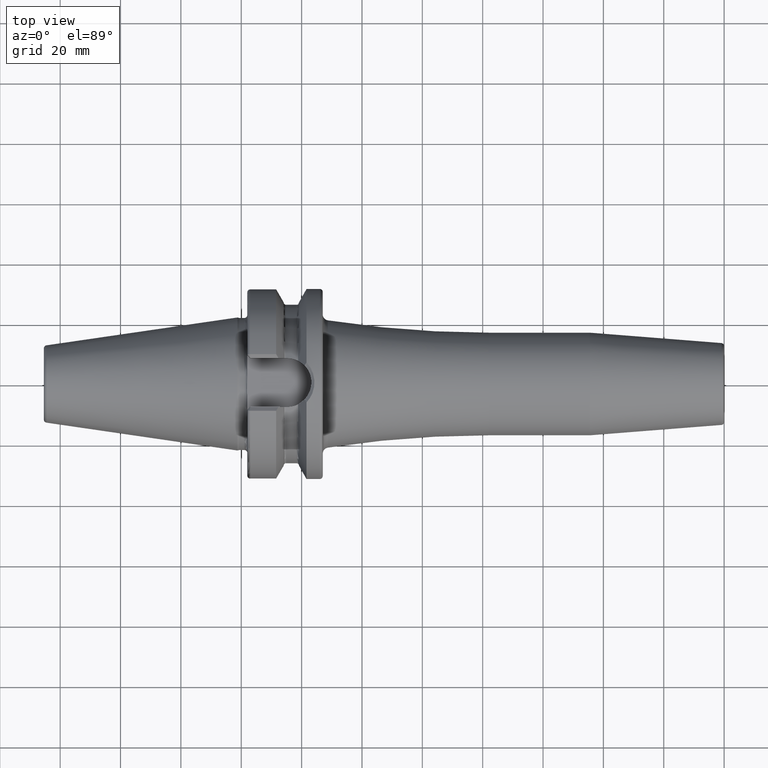
[diagram: clean part render]
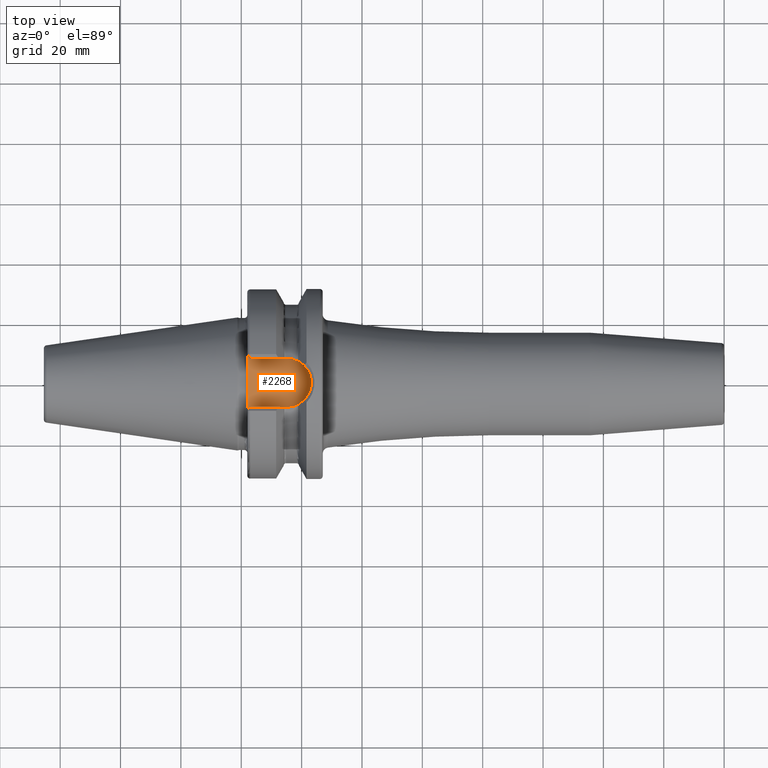
[diagram: same view with one face highlighted and labeled with its STEP entity id]
A machine part, top view. The second image highlights one B-rep face of the part: STEP entity #2268.
In plain terms, the highlighted planar face has unit normal (0, 0, 1).
Its self-contained STEP definition (entity closure, byte-faithful):
#680=DIRECTION('',(1.E0,0.E0,0.E0));
#681=VECTOR('',#680,1.2155E1);
#682=CARTESIAN_POINT('',(3.E0,-8.095E0,2.245E1));
#683=LINE('',#682,#681);
#684=DIRECTION('',(0.E0,1.E0,0.E0));
#685=VECTOR('',#684,4.706022328605E0);
#686=CARTESIAN_POINT('',(2.E0,-9.095E0,2.245E1));
#687=LINE('',#686,#685);
#688=DIRECTION('',(0.E0,1.E0,0.E0));
#689=VECTOR('',#688,4.706022328605E0);
#690=CARTESIAN_POINT('',(2.E0,4.388977671395E0,2.245E1));
#691=LINE('',#690,#689);
#692=DIRECTION('',(-1.E0,0.E0,0.E0));
#693=VECTOR('',#692,1.2155E1);
#694=CARTESIAN_POINT('',(1.5155E1,8.095E0,2.245E1));
#695=LINE('',#694,#693);
#696=CARTESIAN_POINT('',(1.5155E1,0.E0,2.245E1));
#697=DIRECTION('',(0.E0,0.E0,1.E0));
#698=DIRECTION('',(0.E0,-1.E0,0.E0));
#699=AXIS2_PLACEMENT_3D('',#696,#697,#698);
#705=DIRECTION('',(7.071067811865E-1,7.071067811865E-1,0.E0));
#706=VECTOR('',#705,1.414213562373E0);
#707=CARTESIAN_POINT('',(2.E0,-9.095E0,2.245E1));
#708=LINE('',#707,#706);
#714=CARTESIAN_POINT('',(2.E0,-4.388977671395E0,2.245E1));
#715=CARTESIAN_POINT('',(2.E0,-3.970864393558E0,2.245E1));
#716=CARTESIAN_POINT('',(1.981114905487E0,-3.134790252725E0,2.245E1));
#717=CARTESIAN_POINT('',(1.935909306649E0,-1.881114481277E0,2.245E1));
#718=CARTESIAN_POINT('',(1.903922826077E0,-6.271978192649E-1,2.245E1));
#719=CARTESIAN_POINT('',(1.903921553166E0,6.271174205746E-1,2.245E1));
#720=CARTESIAN_POINT('',(1.935907277499E0,1.881058976319E0,2.245E1));
#721=CARTESIAN_POINT('',(1.981114329557E0,3.134769380755E0,2.245E1));
#722=CARTESIAN_POINT('',(2.E0,3.970858027314E0,2.245E1));
#723=CARTESIAN_POINT('',(2.E0,4.388977671395E0,2.245E1));
#730=DIRECTION('',(-7.071067811865E-1,7.071067811865E-1,0.E0));
#731=VECTOR('',#730,1.414213562373E0);
#732=CARTESIAN_POINT('',(3.E0,8.095E0,2.245E1));
#733=LINE('',#732,#731);
#1328=CARTESIAN_POINT('',(1.5155E1,-8.095E0,2.245E1));
#1329=CARTESIAN_POINT('',(1.5155E1,8.095E0,2.245E1));
#1330=VERTEX_POINT('',#1328);
#1331=VERTEX_POINT('',#1329);
#1332=CARTESIAN_POINT('',(2.E0,4.388977671395E0,2.245E1));
#1333=VERTEX_POINT('',#1332);
#1334=CARTESIAN_POINT('',(2.E0,-4.388977671395E0,2.245E1));
#1335=VERTEX_POINT('',#1334);
#1369=CARTESIAN_POINT('',(3.E0,-8.095E0,2.245E1));
#1371=VERTEX_POINT('',#1369);
#1373=CARTESIAN_POINT('',(2.E0,-9.095E0,2.245E1));
#1375=VERTEX_POINT('',#1373);
#1382=CARTESIAN_POINT('',(2.E0,9.095E0,2.245E1));
#1383=VERTEX_POINT('',#1382);
#1384=CARTESIAN_POINT('',(3.E0,8.095E0,2.245E1));
#1386=VERTEX_POINT('',#1384);
#2250=CARTESIAN_POINT('',(0.E0,0.E0,2.245E1));
#2251=DIRECTION('',(0.E0,0.E0,1.E0));
#2252=DIRECTION('',(1.E0,0.E0,0.E0));
#2253=AXIS2_PLACEMENT_3D('',#2250,#2251,#2252);
#2254=PLANE('',#2253);
#2255=ORIENTED_EDGE('',*,*,#2016,.F.);
#2257=ORIENTED_EDGE('',*,*,#2256,.F.);
#2258=ORIENTED_EDGE('',*,*,#1627,.T.);
#2260=ORIENTED_EDGE('',*,*,#2259,.T.);
#2261=ORIENTED_EDGE('',*,*,#1605,.T.);
#2263=ORIENTED_EDGE('',*,*,#2262,.F.);
#2264=ORIENTED_EDGE('',*,*,#2241,.F.);
#2265=ORIENTED_EDGE('',*,*,#1987,.F.);
#2266=EDGE_LOOP('',(#2255,#2257,#2258,#2260,#2261,#2263,#2264,#2265));
#2267=FACE_OUTER_BOUND('',#2266,.F.);
#2268=ADVANCED_FACE('',(#2267),#2254,.T.);
#700=CIRCLE('',#699,8.095E0);
#724=B_SPLINE_CURVE_WITH_KNOTS('',3,(#714,#715,#716,#717,#718,#719,#720,#721,
#722,#723),.UNSPECIFIED.,.F.,.F.,(4,1,1,1,1,1,1,4),(0.E0,1.428571428571E-1,
2.857142857143E-1,4.285714285714E-1,5.714285714286E-1,7.142857142857E-1,
8.571428571429E-1,1.E0),.UNSPECIFIED.);
#1605=EDGE_CURVE('',#1333,#1383,#691,.T.);
#1627=EDGE_CURVE('',#1375,#1335,#687,.T.);
#1987=EDGE_CURVE('',#1330,#1331,#700,.T.);
#2016=EDGE_CURVE('',#1371,#1330,#683,.T.);
#2241=EDGE_CURVE('',#1331,#1386,#695,.T.);
#2256=EDGE_CURVE('',#1375,#1371,#708,.T.);
#2259=EDGE_CURVE('',#1335,#1333,#724,.T.);
#2262=EDGE_CURVE('',#1386,#1383,#733,.T.);